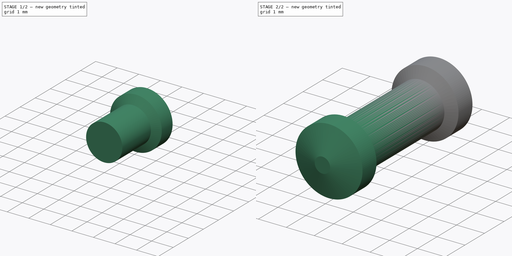
[diagram: build sequence overview — one tinted view per stage of 2, left to right]
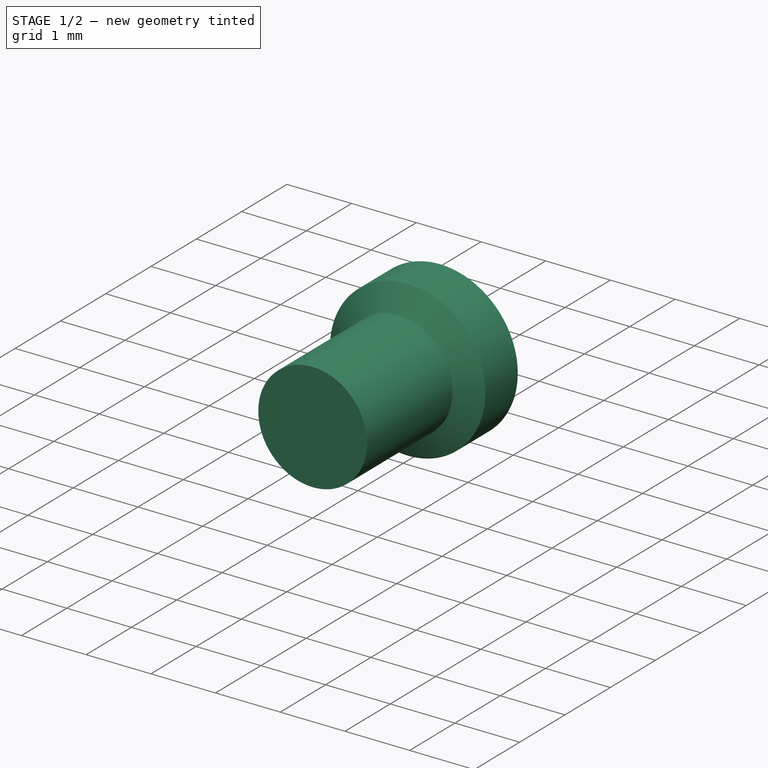
[diagram: stage 1 of 2 — iso view after this stage's code; geometry added in this stage tinted green]
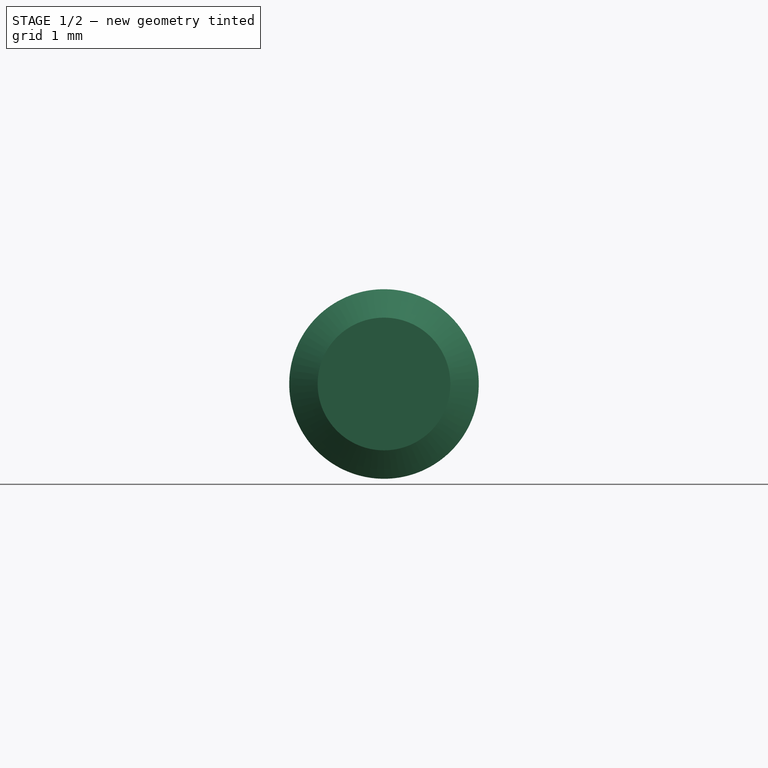
[diagram: stage 1 of 2 — front view after this stage's code; geometry added in this stage tinted green]
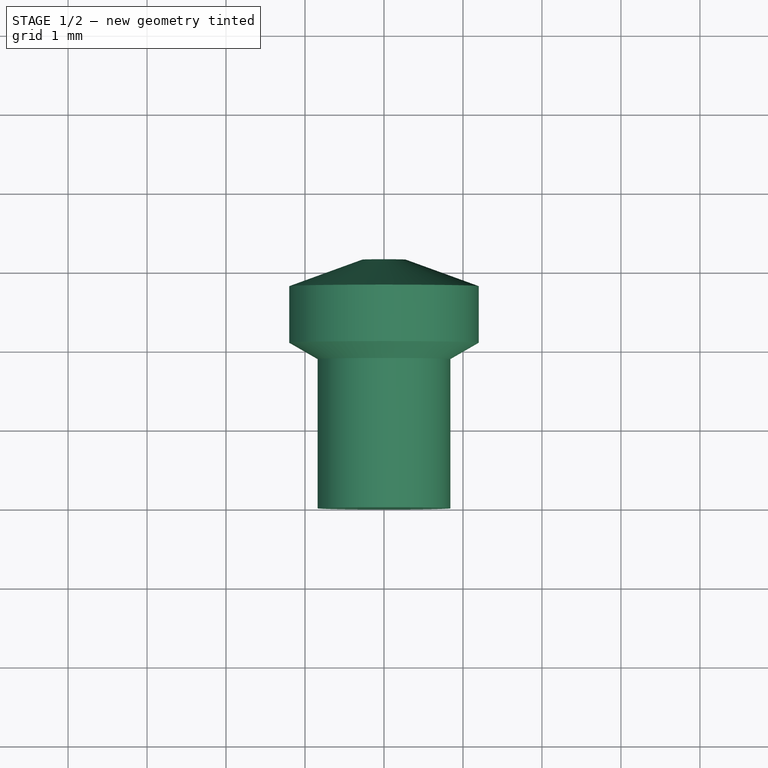
[diagram: stage 1 of 2 — top view after this stage's code; geometry added in this stage tinted green]
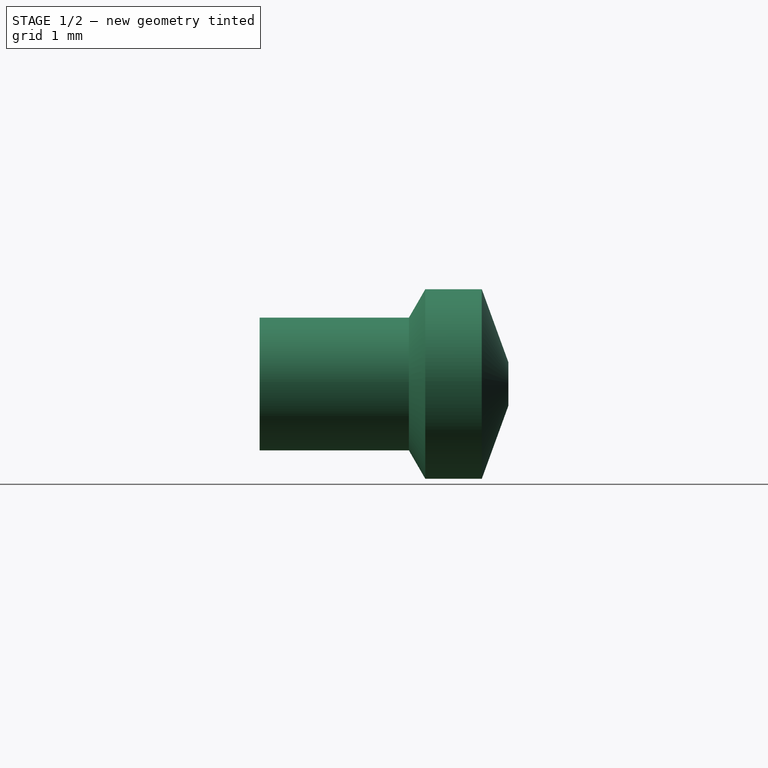
[diagram: stage 1 of 2 — right view after this stage's code; geometry added in this stage tinted green]
FCSTD DOCUMENT  (FreeCAD 0.19R16945 (Git))
Label: Yageo MFR Series
License: All rights reserved
LicenseURL: http://en.wikipedia.org/wiki/All_rights_reserved
objects: Spreadsheet::Sheet×1, Sketcher::SketchObject×1, PartDesign::Revolution×1, PartDesign::Mirrored×1, PartDesign::Body×1
note: 5 computed .brp shape members not serialized (recipe doc carries the construction recipe); baked Part::Feature solids carry a one-line shape summary decoded from their .brp

FEATURE [Spreadsheet::Sheet] Spreadsheet
  cells = B1=MFR-12; C1=MFR-25; D1=MFR-50; E1=MFR100; F1=MFR200; A3=dim_L; B3==3.4mm; C3(dim_L)==6.3mm; D3==9mm; E3==11.5mm; F3==15.5mm; A4=dim_D; B4==1.9mm; C4(dim_D)==2.4mm; D4==3.3mm; E4==4.5mm; F4==5mm; A5=dim_P; A6=dim_d; B6==0.45mm; C6(dim_d)==0.55mm; D6==0.55mm; E6==0.8mm; F6==0.8mm; A8=dim_a; B8(dim_a)=0.6; C8=length factor; A9=dim_b; B9(dim_b)=0.7; C9=thickness factor
FEATURE [Sketcher::SketchObject] Sketch
  AttachmentOffset = pos=(0,0,0) rot=(0,0,1;3.14159rad)
  MapMode = 5
  Placement = pos=(0,0,0) rot=(0.57735,-0.57735,0.57735;4.18879rad)
  Support = -> [YZ_Plane]
  expr: Constraints[16] = Spreadsheet.dim_L / 2 * Spreadsheet.dim_a
  expr: Constraints[15] = Spreadsheet.dim_d / 2
  expr: Constraints[17] = Spreadsheet.dim_D / 2 * Spreadsheet.dim_b
  expr: Constraints[14] = Spreadsheet.dim_L / 2
  expr: Constraints[13] = Spreadsheet.dim_D / 2
  sketch-geometry (8):
    g0: LineSegment StartX=0 StartY=0.84 StartZ=0 EndX=-1.89 EndY=0.84 EndZ=0
    g1: LineSegment StartX=-1.89 StartY=0.84 StartZ=0 EndX=-2.09785 EndY=1.2 EndZ=0
    g2: LineSegment StartX=-2.09785 StartY=1.2 StartZ=0 EndX=-2.81333 EndY=1.2 EndZ=0
    g3: LineSegment StartX=-2.81333 StartY=1.2 StartZ=0 EndX=-3.15 EndY=0.275 EndZ=0
    g4: LineSegment StartX=-3.15 StartY=0.275 StartZ=0 EndX=-3.15 EndY=0 EndZ=0
    g5: LineSegment StartX=-3.15 StartY=0 StartZ=0 EndX=0 EndY=0 EndZ=0
    g6: LineSegment StartX=0 StartY=0 StartZ=0 EndX=0 EndY=0.84 EndZ=0
    g7: GeomPoint X=-2.45559 Y=1.2 Z=0
  constraints (21):
    c: PointOnObject(g0,g-2)
    c: Horizontal(g0)
    c: Coincident(g0,g1)
    c: Coincident(g1,g2)
    c: Horizontal(g2)
    c: Coincident(g2,g3)
    c: Coincident(g3,g4)
    c: PointOnObject(g4,g-1)
    c: Vertical(g4)
    c: Coincident(g4,g5)
    c: Coincident(g5,g-1)
    c: Coincident(g5,g6)
    c: Coincident(g6,g0)
    c: DistanceY(g5,g1) = 1.2
    c: DistanceX(g4,g5) = 3.15
    c: DistanceY(g4,g3) = 0.275
    c: DistanceX(g0,g0) = 1.89
    c: DistanceY(g6,g6) = 0.84
    c: Angle(g3,g1) = 0.872665
    c: Symmetric(g2,g1,g7)
    c: Angle(g0,g1) = 2.0944
FEATURE [PartDesign::Revolution] Revolution
  Angle = 360
  Axis = (1e-16,1,-1e-16)
  Base = (0,0,0)
  Placement = pos=(0,0,0) rot=(0.57735,0.57735,0.57735;2.0944rad)
  Profile = -> Sketch
  ReferenceAxis = -> Y_Axis
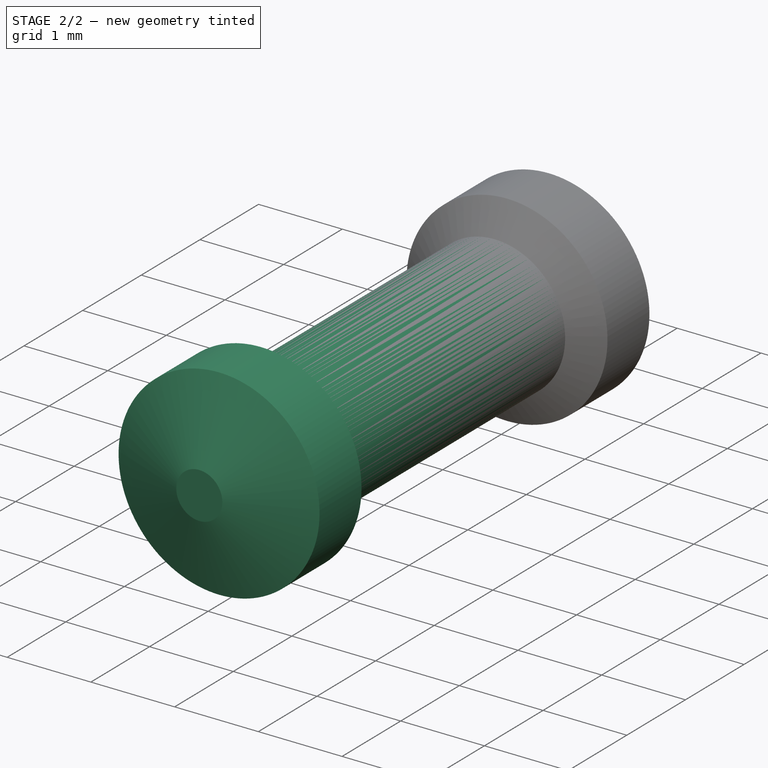
[diagram: stage 2 of 2 — iso view after this stage's code; geometry added in this stage tinted green]
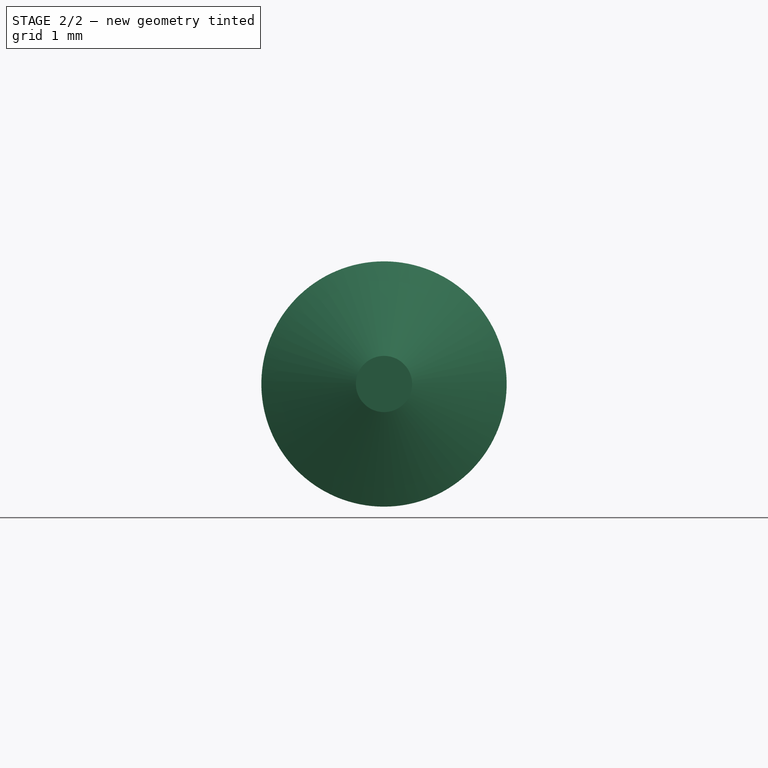
[diagram: stage 2 of 2 — front view after this stage's code; geometry added in this stage tinted green]
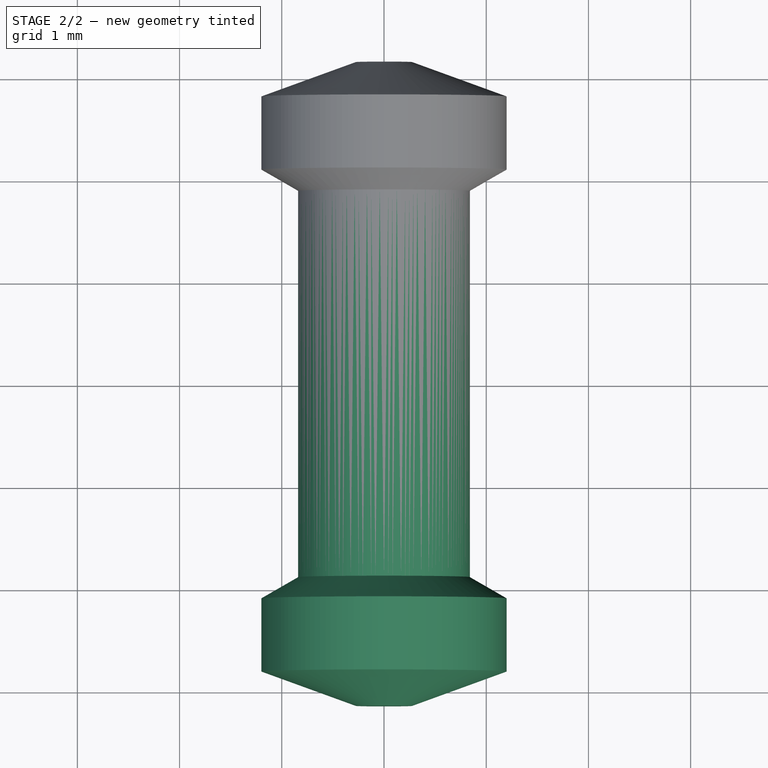
[diagram: stage 2 of 2 — top view after this stage's code; geometry added in this stage tinted green]
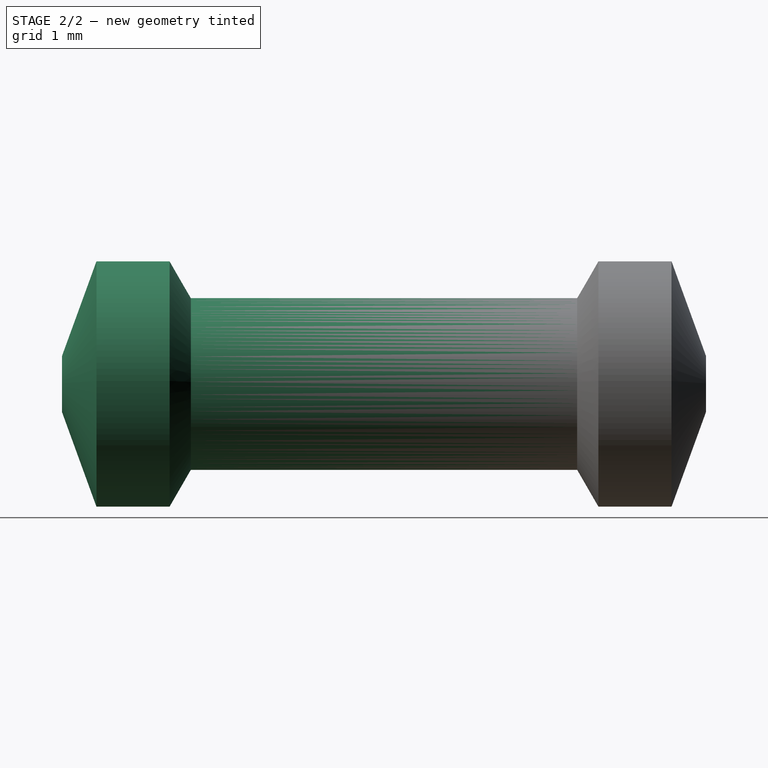
[diagram: stage 2 of 2 — right view after this stage's code; geometry added in this stage tinted green]
FEATURE [PartDesign::Mirrored] Mirrored
  BaseFeature = -> Revolution
  MirrorPlane = -> Sketch [V_Axis]
  Originals = -> [Revolution]
  Placement = pos=(0,0,0) rot=(0.57735,0.57735,0.57735;2.0944rad)
  Refine = true
FEATURE [PartDesign::Body] Body
  Group = -> [Sketch,Revolution,Mirrored]
  Origin = -> Origin
  Tip = -> Mirrored
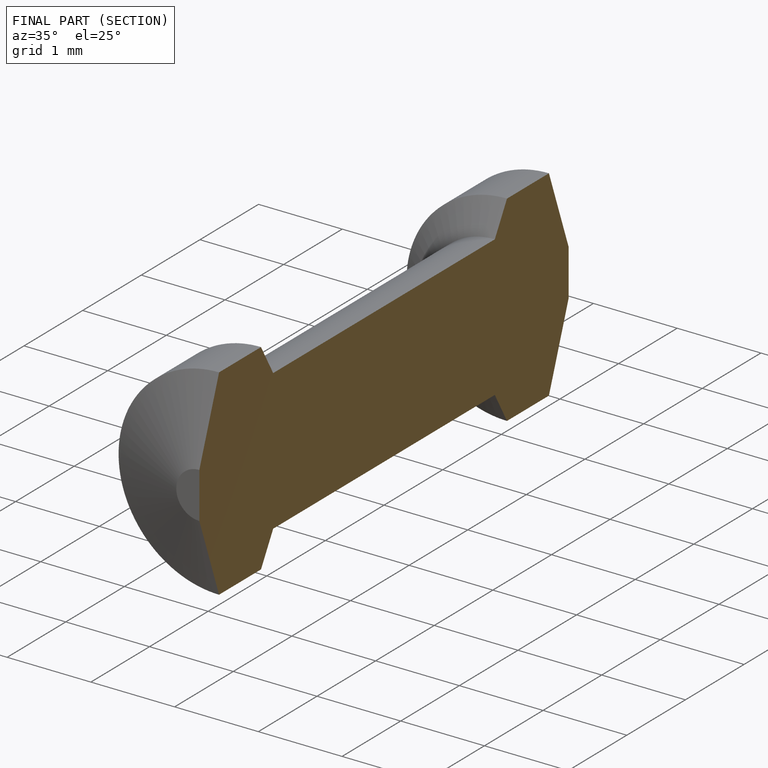
[diagram: finished part — half-section view (interior)]
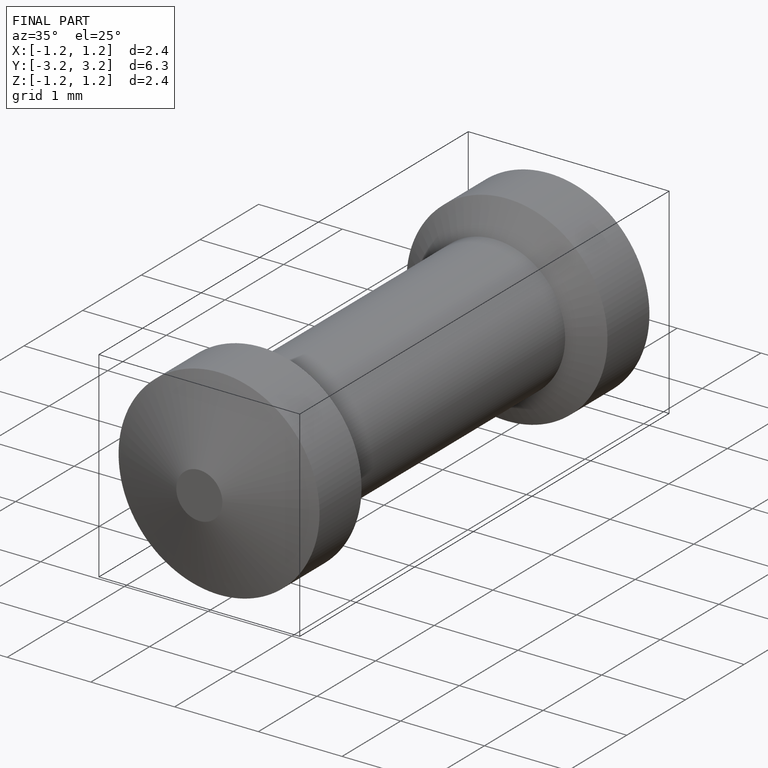
[diagram: finished part — iso view with bounding-box wireframe]
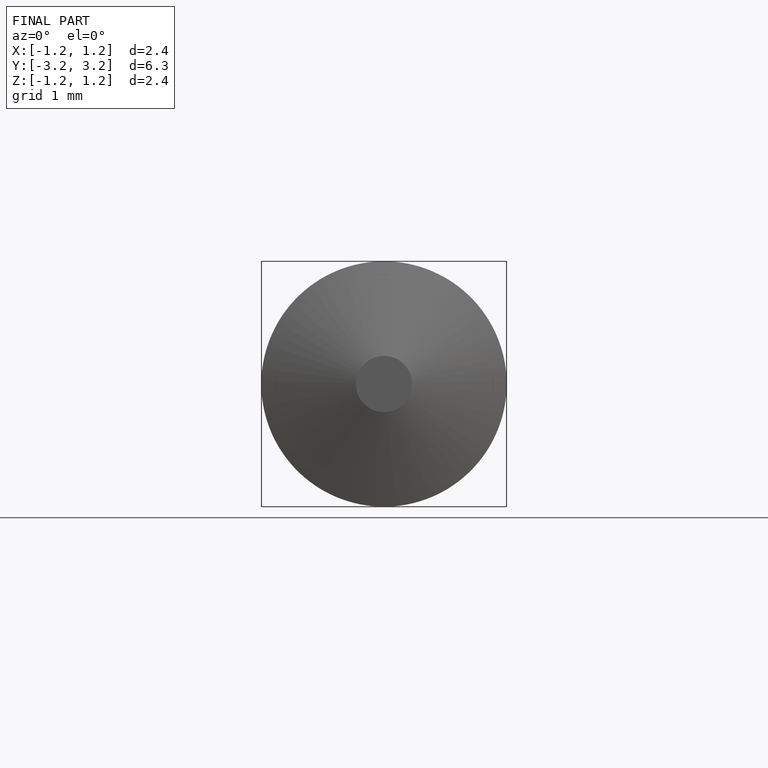
[diagram: finished part — front view with bounding-box wireframe]
